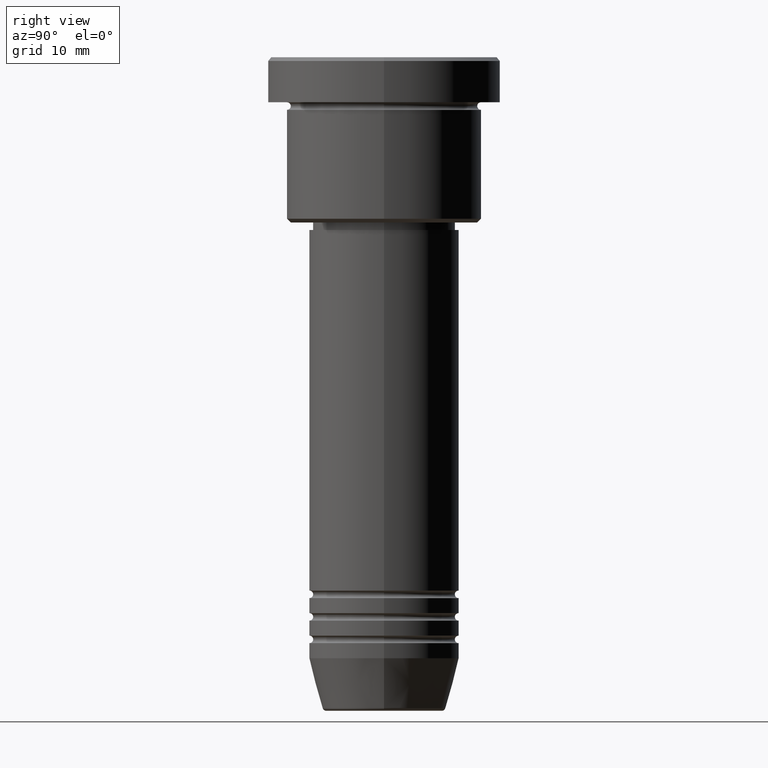
[diagram: clean part render]
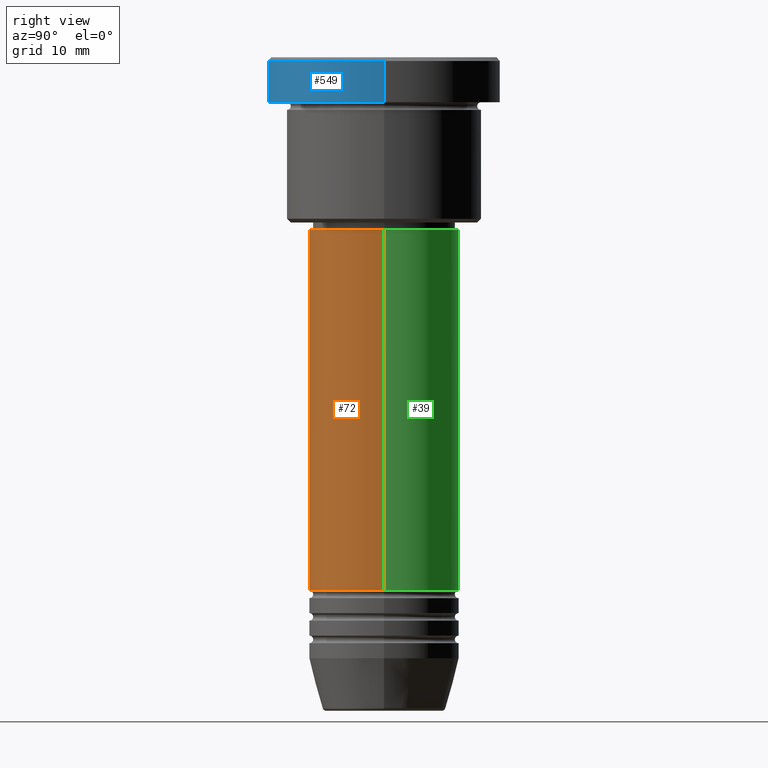
[diagram: same view with three faces highlighted in distinct colors, each labeled with its STEP entity id]
A machine part, right view with three faces highlighted in distinct colors.
Their STEP definitions:

[orange] entity #72 — the highlighted cylindrical surface (partial cylindrical patch) has radius 10 mm, axis along (-0, -0, 1).
#41 = FACE_OUTER_BOUND ( 'NONE', #842, .T. ) ;
#56 = DIRECTION ( 'NONE',  ( -0.000000000000000000, -0.000000000000000000, 1.000000000000000000 ) ) ;
#72 = ADVANCED_FACE ( 'NONE', ( #41 ), #415, .T. ) ;
#78 = ORIENTED_EDGE ( 'NONE', *, *, #277, .F. ) ;
#108 = EDGE_CURVE ( 'NONE', #517, #270, #854, .T. ) ;
#112 = VERTEX_POINT ( 'NONE', #859 ) ;
#125 = CIRCLE ( 'NONE', #807, 10.00000000000000000 ) ;
#149 = DIRECTION ( 'NONE',  ( 1.000000000000000000, 0.000000000000000000, 0.000000000000000000 ) ) ;
#212 = CARTESIAN_POINT ( 'NONE',  ( 0.000000000000000000, 0.000000000000000000, -70.99999999999997158 ) ) ;
#259 = CARTESIAN_POINT ( 'NONE',  ( -10.00000000000000000, 1.224646799147353256E-15, -70.99999999999997158 ) ) ;
#264 = DIRECTION ( 'NONE',  ( -0.000000000000000000, -0.000000000000000000, 1.000000000000000000 ) ) ;
#270 = VERTEX_POINT ( 'NONE', #281 ) ;
#277 = EDGE_CURVE ( 'NONE', #1175, #112, #651, .T. ) ;
#281 = CARTESIAN_POINT ( 'NONE',  ( 10.00000000000000000, 0.000000000000000000, -22.99999999999996447 ) ) ;
#377 = ORIENTED_EDGE ( 'NONE', *, *, #1095, .F. ) ;
#389 = CIRCLE ( 'NONE', #1068, 10.00000000000000000 ) ;
#415 = CYLINDRICAL_SURFACE ( 'NONE', #982, 10.00000000000000000 ) ;
#422 = VECTOR ( 'NONE', #715, 1000.000000000000000 ) ;
#463 = CARTESIAN_POINT ( 'NONE',  ( -10.00000000000000000, 1.224646799147353256E-15, 0.000000000000000000 ) ) ;
#517 = VERTEX_POINT ( 'NONE', #684 ) ;
#538 = DIRECTION ( 'NONE',  ( 1.000000000000000000, 0.000000000000000000, 0.000000000000000000 ) ) ;
#582 = CARTESIAN_POINT ( 'NONE',  ( 0.000000000000000000, 0.000000000000000000, 0.000000000000000000 ) ) ;
#651 = LINE ( 'NONE', #463, #422 ) ;
#684 = CARTESIAN_POINT ( 'NONE',  ( 10.00000000000000000, 0.000000000000000000, -70.99999999999997158 ) ) ;
#715 = DIRECTION ( 'NONE',  ( -0.000000000000000000, -0.000000000000000000, 1.000000000000000000 ) ) ;
#764 = DIRECTION ( 'NONE',  ( -0.000000000000000000, -0.000000000000000000, 1.000000000000000000 ) ) ;
#775 = DIRECTION ( 'NONE',  ( -0.000000000000000000, -0.000000000000000000, 1.000000000000000000 ) ) ;
#800 = EDGE_CURVE ( 'NONE', #1175, #517, #125, .T. ) ;
#807 = AXIS2_PLACEMENT_3D ( 'NONE', #212, #764, #1129 ) ;
#842 = EDGE_LOOP ( 'NONE', ( #78, #1128, #989, #377 ) ) ;
#854 = LINE ( 'NONE', #892, #1174 ) ;
#859 = CARTESIAN_POINT ( 'NONE',  ( -10.00000000000000000, 1.224646799147353256E-15, -22.99999999999996447 ) ) ;
#892 = CARTESIAN_POINT ( 'NONE',  ( 10.00000000000000000, 0.000000000000000000, 0.000000000000000000 ) ) ;
#908 = CARTESIAN_POINT ( 'NONE',  ( 0.000000000000000000, 0.000000000000000000, -22.99999999999996447 ) ) ;
#982 = AXIS2_PLACEMENT_3D ( 'NONE', #582, #56, #149 ) ;
#989 = ORIENTED_EDGE ( 'NONE', *, *, #108, .T. ) ;
#1068 = AXIS2_PLACEMENT_3D ( 'NONE', #908, #264, #538 ) ;
#1095 = EDGE_CURVE ( 'NONE', #112, #270, #389, .T. ) ;
#1128 = ORIENTED_EDGE ( 'NONE', *, *, #800, .T. ) ;
#1129 = DIRECTION ( 'NONE',  ( 1.000000000000000000, 0.000000000000000000, 0.000000000000000000 ) ) ;
#1174 = VECTOR ( 'NONE', #775, 1000.000000000000000 ) ;
#1175 = VERTEX_POINT ( 'NONE', #259 ) ;

[blue] entity #549 — the highlighted cylindrical surface (partial cylindrical patch) has radius 15.5 mm, axis along (-0, -0, 1).
#58 = ORIENTED_EDGE ( 'NONE', *, *, #1146, .F. ) ;
#73 = ORIENTED_EDGE ( 'NONE', *, *, #401, .T. ) ;
#98 = EDGE_CURVE ( 'NONE', #1067, #446, #268, .T. ) ;
#143 = AXIS2_PLACEMENT_3D ( 'NONE', #339, #418, #688 ) ;
#148 = FACE_OUTER_BOUND ( 'NONE', #182, .T. ) ;
#166 = VERTEX_POINT ( 'NONE', #685 ) ;
#182 = EDGE_LOOP ( 'NONE', ( #58, #197, #889, #73 ) ) ;
#197 = ORIENTED_EDGE ( 'NONE', *, *, #98, .T. ) ;
#238 = VECTOR ( 'NONE', #817, 1000.000000000000000 ) ;
#268 = CIRCLE ( 'NONE', #475, 15.50000000000000000 ) ;
#301 = DIRECTION ( 'NONE',  ( 1.000000000000000000, 0.000000000000000000, 0.000000000000000000 ) ) ;
#339 = CARTESIAN_POINT ( 'NONE',  ( 0.000000000000000000, 0.000000000000000000, 0.000000000000000000 ) ) ;
#351 = LINE ( 'NONE', #723, #238 ) ;
#365 = AXIS2_PLACEMENT_3D ( 'NONE', #1131, #1145, #301 ) ;
#401 = EDGE_CURVE ( 'NONE', #166, #593, #1119, .T. ) ;
#402 = DIRECTION ( 'NONE',  ( 1.000000000000000000, 0.000000000000000000, 0.000000000000000000 ) ) ;
#418 = DIRECTION ( 'NONE',  ( -0.000000000000000000, -0.000000000000000000, 1.000000000000000000 ) ) ;
#425 = VECTOR ( 'NONE', #996, 1000.000000000000000 ) ;
#446 = VERTEX_POINT ( 'NONE', #774 ) ;
#475 = AXIS2_PLACEMENT_3D ( 'NONE', #994, #953, #402 ) ;
#549 = ADVANCED_FACE ( 'NONE', ( #148 ), #976, .T. ) ;
#593 = VERTEX_POINT ( 'NONE', #606 ) ;
#606 = CARTESIAN_POINT ( 'NONE',  ( -15.50000000000000000, 1.898202538678397557E-15, -0.4999999999999987232 ) ) ;
#685 = CARTESIAN_POINT ( 'NONE',  ( 15.50000000000000000, 0.000000000000000000, -0.4999999999999987232 ) ) ;
#688 = DIRECTION ( 'NONE',  ( 1.000000000000000000, 0.000000000000000000, 0.000000000000000000 ) ) ;
#723 = CARTESIAN_POINT ( 'NONE',  ( -15.50000000000000000, 1.898202538678397557E-15, 0.000000000000000000 ) ) ;
#774 = CARTESIAN_POINT ( 'NONE',  ( 15.50000000000000000, 0.000000000000000000, -5.999999999999995559 ) ) ;
#817 = DIRECTION ( 'NONE',  ( -0.000000000000000000, -0.000000000000000000, 1.000000000000000000 ) ) ;
#878 = CARTESIAN_POINT ( 'NONE',  ( -15.50000000000000000, 1.898202538678397557E-15, -5.999999999999995559 ) ) ;
#889 = ORIENTED_EDGE ( 'NONE', *, *, #1132, .T. ) ;
#953 = DIRECTION ( 'NONE',  ( -0.000000000000000000, -0.000000000000000000, 1.000000000000000000 ) ) ;
#976 = CYLINDRICAL_SURFACE ( 'NONE', #143, 15.50000000000000000 ) ;
#994 = CARTESIAN_POINT ( 'NONE',  ( 0.000000000000000000, 0.000000000000000000, -5.999999999999995559 ) ) ;
#996 = DIRECTION ( 'NONE',  ( -0.000000000000000000, -0.000000000000000000, 1.000000000000000000 ) ) ;
#1002 = CARTESIAN_POINT ( 'NONE',  ( 15.50000000000000000, 0.000000000000000000, 0.000000000000000000 ) ) ;
#1067 = VERTEX_POINT ( 'NONE', #878 ) ;
#1119 = CIRCLE ( 'NONE', #365, 15.50000000000000000 ) ;
#1131 = CARTESIAN_POINT ( 'NONE',  ( 0.000000000000000000, 0.000000000000000000, -0.4999999999999987232 ) ) ;
#1132 = EDGE_CURVE ( 'NONE', #446, #166, #1176, .T. ) ;
#1145 = DIRECTION ( 'NONE',  ( 0.000000000000000000, 0.000000000000000000, -1.000000000000000000 ) ) ;
#1146 = EDGE_CURVE ( 'NONE', #1067, #593, #351, .T. ) ;
#1176 = LINE ( 'NONE', #1002, #425 ) ;

[green] entity #39 — the highlighted cylindrical surface (partial cylindrical patch) has radius 10 mm, axis along (-0, -0, 1).
#12 = AXIS2_PLACEMENT_3D ( 'NONE', #1161, #692, #794 ) ;
#34 = DIRECTION ( 'NONE',  ( -0.000000000000000000, -0.000000000000000000, 1.000000000000000000 ) ) ;
#39 = ADVANCED_FACE ( 'NONE', ( #372 ), #847, .T. ) ;
#108 = EDGE_CURVE ( 'NONE', #517, #270, #854, .T. ) ;
#112 = VERTEX_POINT ( 'NONE', #859 ) ;
#236 = AXIS2_PLACEMENT_3D ( 'NONE', #413, #979, #423 ) ;
#259 = CARTESIAN_POINT ( 'NONE',  ( -10.00000000000000000, 1.224646799147353256E-15, -70.99999999999997158 ) ) ;
#270 = VERTEX_POINT ( 'NONE', #281 ) ;
#277 = EDGE_CURVE ( 'NONE', #1175, #112, #651, .T. ) ;
#281 = CARTESIAN_POINT ( 'NONE',  ( 10.00000000000000000, 0.000000000000000000, -22.99999999999996447 ) ) ;
#337 = ORIENTED_EDGE ( 'NONE', *, *, #277, .T. ) ;
#352 = ORIENTED_EDGE ( 'NONE', *, *, #993, .T. ) ;
#372 = FACE_OUTER_BOUND ( 'NONE', #622, .T. ) ;
#383 = CARTESIAN_POINT ( 'NONE',  ( 0.000000000000000000, 0.000000000000000000, 0.000000000000000000 ) ) ;
#413 = CARTESIAN_POINT ( 'NONE',  ( 0.000000000000000000, 0.000000000000000000, -22.99999999999996447 ) ) ;
#422 = VECTOR ( 'NONE', #715, 1000.000000000000000 ) ;
#423 = DIRECTION ( 'NONE',  ( 1.000000000000000000, 0.000000000000000000, 0.000000000000000000 ) ) ;
#463 = CARTESIAN_POINT ( 'NONE',  ( -10.00000000000000000, 1.224646799147353256E-15, 0.000000000000000000 ) ) ;
#517 = VERTEX_POINT ( 'NONE', #684 ) ;
#521 = EDGE_CURVE ( 'NONE', #270, #112, #1139, .T. ) ;
#622 = EDGE_LOOP ( 'NONE', ( #352, #337, #877, #704 ) ) ;
#650 = AXIS2_PLACEMENT_3D ( 'NONE', #383, #34, #755 ) ;
#651 = LINE ( 'NONE', #463, #422 ) ;
#684 = CARTESIAN_POINT ( 'NONE',  ( 10.00000000000000000, 0.000000000000000000, -70.99999999999997158 ) ) ;
#692 = DIRECTION ( 'NONE',  ( -0.000000000000000000, -0.000000000000000000, 1.000000000000000000 ) ) ;
#704 = ORIENTED_EDGE ( 'NONE', *, *, #108, .F. ) ;
#715 = DIRECTION ( 'NONE',  ( -0.000000000000000000, -0.000000000000000000, 1.000000000000000000 ) ) ;
#755 = DIRECTION ( 'NONE',  ( 1.000000000000000000, 0.000000000000000000, 0.000000000000000000 ) ) ;
#775 = DIRECTION ( 'NONE',  ( -0.000000000000000000, -0.000000000000000000, 1.000000000000000000 ) ) ;
#794 = DIRECTION ( 'NONE',  ( 1.000000000000000000, 0.000000000000000000, 0.000000000000000000 ) ) ;
#847 = CYLINDRICAL_SURFACE ( 'NONE', #650, 10.00000000000000000 ) ;
#854 = LINE ( 'NONE', #892, #1174 ) ;
#859 = CARTESIAN_POINT ( 'NONE',  ( -10.00000000000000000, 1.224646799147353256E-15, -22.99999999999996447 ) ) ;
#877 = ORIENTED_EDGE ( 'NONE', *, *, #521, .F. ) ;
#892 = CARTESIAN_POINT ( 'NONE',  ( 10.00000000000000000, 0.000000000000000000, 0.000000000000000000 ) ) ;
#979 = DIRECTION ( 'NONE',  ( -0.000000000000000000, -0.000000000000000000, 1.000000000000000000 ) ) ;
#993 = EDGE_CURVE ( 'NONE', #517, #1175, #1048, .T. ) ;
#1048 = CIRCLE ( 'NONE', #12, 10.00000000000000000 ) ;
#1139 = CIRCLE ( 'NONE', #236, 10.00000000000000000 ) ;
#1161 = CARTESIAN_POINT ( 'NONE',  ( 0.000000000000000000, 0.000000000000000000, -70.99999999999997158 ) ) ;
#1174 = VECTOR ( 'NONE', #775, 1000.000000000000000 ) ;
#1175 = VERTEX_POINT ( 'NONE', #259 ) ;